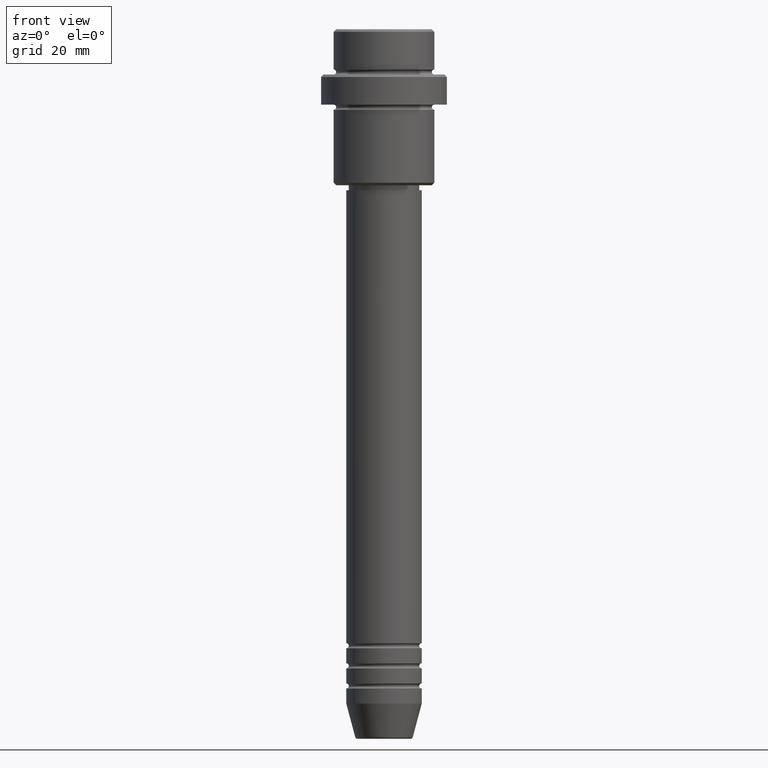
[diagram: clean part render]
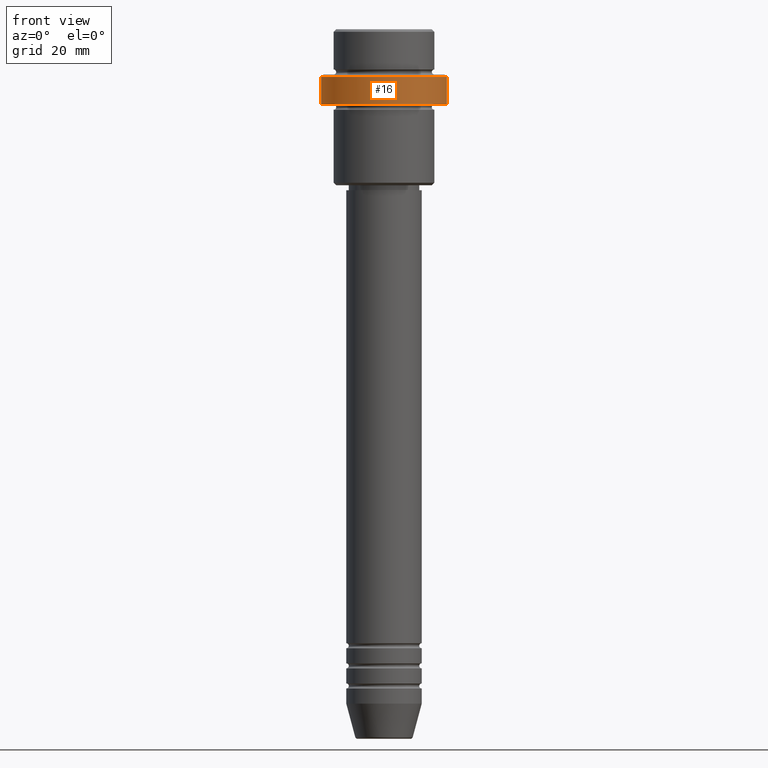
[diagram: same view with one face highlighted and labeled with its STEP entity id]
A machine part, front view. The second image highlights one B-rep face of the part: STEP entity #16.
In plain terms, the highlighted cylindrical surface (partial cylindrical patch) has radius 12.5 mm, axis along (-0, -0, 1).
Its self-contained STEP definition (entity closure, byte-faithful):
#16 = ADVANCED_FACE ( 'NONE', ( #1179 ), #1414, .T. ) ;
#30 = VECTOR ( 'NONE', #110, 1000.000000000000000 ) ;
#73 = EDGE_CURVE ( 'NONE', #1178, #106, #829, .T. ) ;
#85 = ORIENTED_EDGE ( 'NONE', *, *, #1365, .T. ) ;
#106 = VERTEX_POINT ( 'NONE', #506 ) ;
#110 = DIRECTION ( 'NONE',  ( -0.000000000000000000, -0.000000000000000000, 1.000000000000000000 ) ) ;
#125 = LINE ( 'NONE', #426, #30 ) ;
#177 = DIRECTION ( 'NONE',  ( -0.000000000000000000, -0.000000000000000000, 1.000000000000000000 ) ) ;
#318 = CARTESIAN_POINT ( 'NONE',  ( -12.50000000000000000, 1.530808498934191521E-15, 0.000000000000000000 ) ) ;
#384 = ORIENTED_EDGE ( 'NONE', *, *, #73, .F. ) ;
#390 = DIRECTION ( 'NONE',  ( 1.000000000000000000, 0.000000000000000000, 0.000000000000000000 ) ) ;
#426 = CARTESIAN_POINT ( 'NONE',  ( 12.50000000000000000, 0.000000000000000000, 0.000000000000000000 ) ) ;
#482 = CARTESIAN_POINT ( 'NONE',  ( -12.50000000000000000, 1.530808498934191521E-15, -15.00000000000000000 ) ) ;
#499 = AXIS2_PLACEMENT_3D ( 'NONE', #1034, #518, #390 ) ;
#506 = CARTESIAN_POINT ( 'NONE',  ( -12.50000000000000000, 1.530808498934191521E-15, -9.500000000000005329 ) ) ;
#518 = DIRECTION ( 'NONE',  ( -0.000000000000000000, -0.000000000000000000, 1.000000000000000000 ) ) ;
#543 = VERTEX_POINT ( 'NONE', #1405 ) ;
#604 = DIRECTION ( 'NONE',  ( 0.000000000000000000, 0.000000000000000000, -1.000000000000000000 ) ) ;
#612 = DIRECTION ( 'NONE',  ( 1.000000000000000000, 0.000000000000000000, 0.000000000000000000 ) ) ;
#625 = EDGE_CURVE ( 'NONE', #543, #826, #125, .T. ) ;
#645 = AXIS2_PLACEMENT_3D ( 'NONE', #951, #1299, #1406 ) ;
#781 = AXIS2_PLACEMENT_3D ( 'NONE', #1390, #604, #612 ) ;
#826 = VERTEX_POINT ( 'NONE', #918 ) ;
#829 = LINE ( 'NONE', #318, #868 ) ;
#868 = VECTOR ( 'NONE', #177, 1000.000000000000000 ) ;
#918 = CARTESIAN_POINT ( 'NONE',  ( 12.50000000000000000, 0.000000000000000000, -9.500000000000005329 ) ) ;
#935 = ORIENTED_EDGE ( 'NONE', *, *, #939, .T. ) ;
#939 = EDGE_CURVE ( 'NONE', #1178, #543, #978, .T. ) ;
#951 = CARTESIAN_POINT ( 'NONE',  ( 0.000000000000000000, 0.000000000000000000, 0.000000000000000000 ) ) ;
#965 = EDGE_LOOP ( 'NONE', ( #384, #935, #1309, #85 ) ) ;
#978 = CIRCLE ( 'NONE', #499, 12.50000000000000000 ) ;
#1034 = CARTESIAN_POINT ( 'NONE',  ( 0.000000000000000000, 0.000000000000000000, -15.00000000000000000 ) ) ;
#1101 = CIRCLE ( 'NONE', #781, 12.50000000000000000 ) ;
#1178 = VERTEX_POINT ( 'NONE', #482 ) ;
#1179 = FACE_OUTER_BOUND ( 'NONE', #965, .T. ) ;
#1299 = DIRECTION ( 'NONE',  ( -0.000000000000000000, -0.000000000000000000, 1.000000000000000000 ) ) ;
#1309 = ORIENTED_EDGE ( 'NONE', *, *, #625, .T. ) ;
#1365 = EDGE_CURVE ( 'NONE', #826, #106, #1101, .T. ) ;
#1390 = CARTESIAN_POINT ( 'NONE',  ( 0.000000000000000000, 0.000000000000000000, -9.500000000000005329 ) ) ;
#1405 = CARTESIAN_POINT ( 'NONE',  ( 12.50000000000000000, 0.000000000000000000, -15.00000000000000000 ) ) ;
#1406 = DIRECTION ( 'NONE',  ( 1.000000000000000000, 0.000000000000000000, 0.000000000000000000 ) ) ;
#1414 = CYLINDRICAL_SURFACE ( 'NONE', #645, 12.50000000000000000 ) ;